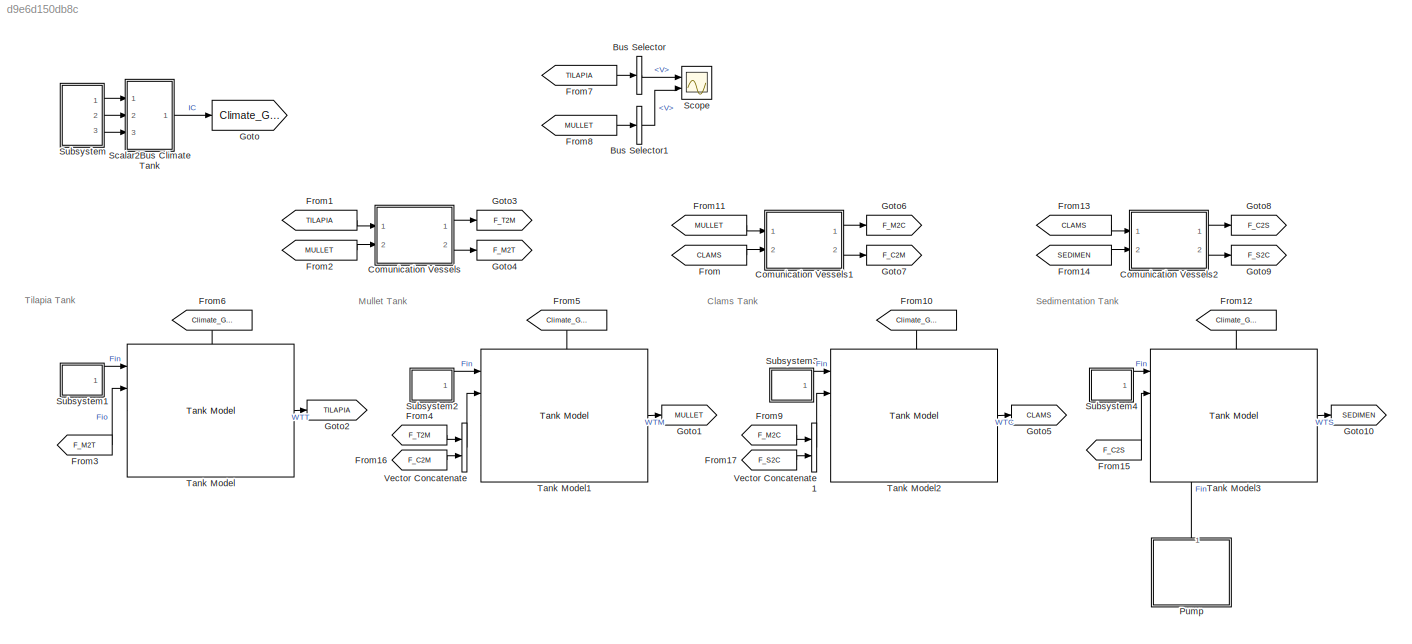
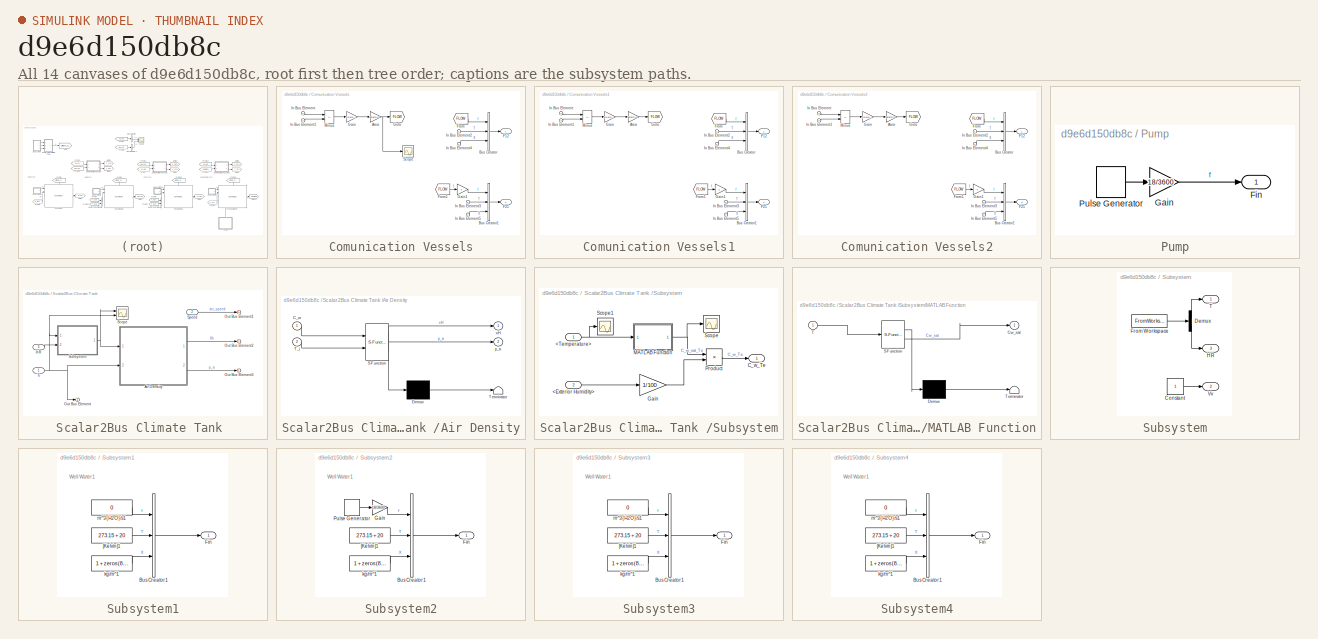
[diagram: thumbnail index - all 14 canvases of the model, root first then tree order]
MODEL slx_d9e6d150db8c
KIND model
CONFIG AbsTol = auto
CONFIG EnableMultiTasking = off
CONFIG FixedStep = auto
CONFIG MaxStep = auto
CONFIG MinStep = auto
CONFIG RelTol = 1e-3
CONFIG SampleTimeConstraint = Unconstrained
CONFIG SolverName = VariableStepAuto
CONFIG StartTime = 0.0
CONFIG StopTime = tspan(end)
BLOCK [BusSelector] Bus Selector
  OutputSignals = V
  Ports = [1, 1]
BLOCK [BusSelector] Bus Selector1
  OutputSignals = V
  Ports = [1, 1]
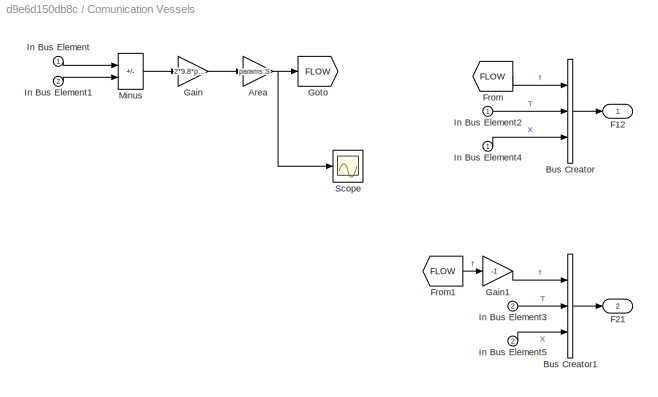
BLOCK [SubSystem] Comunication Vessels
  Ports = [2, 2]
  RequestExecContextInheritance = off
BLOCK [Gain] Comunication Vessels/Area
  Gain = params.S
BLOCK [BusCreator] Comunication Vessels/Bus Creator
  DisplayOption = bar
  InheritFromInputs = on
  Inputs = 3
  NonVirtualBus = on
  OutDataTypeStr = Bus: FLOW
  Ports = [3, 1]
BLOCK [BusCreator] Comunication Vessels/Bus Creator1
  DisplayOption = bar
  InheritFromInputs = on
  Inputs = 3
  NonVirtualBus = on
  OutDataTypeStr = Bus: FLOW
  Ports = [3, 1]
BLOCK [Outport] Comunication Vessels/F12
BLOCK [Outport] Comunication Vessels/F21
  Port = 2
BLOCK [From] Comunication Vessels/From
  GotoTag = FLOW
BLOCK [From] Comunication Vessels/From1
  GotoTag = FLOW
BLOCK [Gain] Comunication Vessels/Gain
  Gain = 2*9.8*params.S
BLOCK [Gain] Comunication Vessels/Gain1
  Gain = -1
BLOCK [Goto] Comunication Vessels/Goto
  GotoTag = FLOW
BLOCK [Inport] Comunication Vessels/In Bus Element
BLOCK [Inport] Comunication Vessels/In Bus Element1
  Port = 2
BLOCK [Inport] Comunication Vessels/In Bus Element2
BLOCK [Inport] Comunication Vessels/In Bus Element3
  Port = 2
BLOCK [Inport] Comunication Vessels/In Bus Element4
BLOCK [Inport] Comunication Vessels/In Bus Element5
  Port = 2
BLOCK [Sum] Comunication Vessels/Minus
  IconShape = rectangular
  Inputs = +-
  Ports = [2, 1]
BLOCK [Scope] Comunication Vessels/Scope
  Floating = off
  NumInputPorts = 1
  Ports = [1]
  ScopeSpecificationString = Simulink.scopes.TimeScopeBlockCfg('CurrentConfiguration', extmgr.ConfigurationSet(extmgr.Configuration('Core','General UI',true),extmgr.Configuration('Core','Source UI',true),extmgr.Configuration('Sources','WiredSimulink',true,'DataLoggingVariableName','ScopeData4'),extmgr.Configuration('Visuals','Time Domain',true,'SerializedDisplays',{struct('MinYLimReal','-0.00000000016','MaxYLimReal','0.000000...<+1411ch>
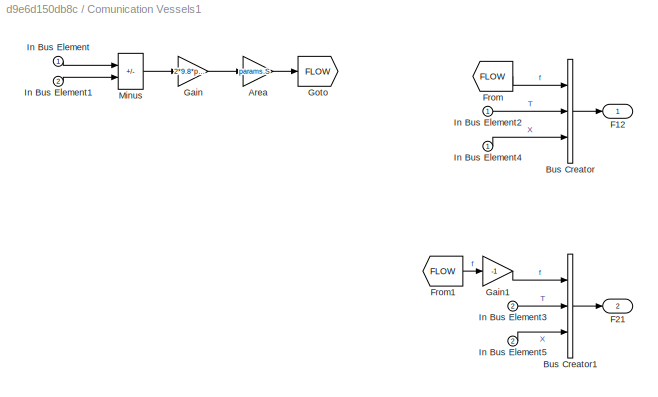
BLOCK [SubSystem] Comunication Vessels1
  Ports = [2, 2]
  RequestExecContextInheritance = off
BLOCK [Gain] Comunication Vessels1/Area
  Gain = params.S
BLOCK [BusCreator] Comunication Vessels1/Bus Creator
  DisplayOption = bar
  InheritFromInputs = on
  Inputs = 3
  NonVirtualBus = on
  OutDataTypeStr = Bus: FLOW
  Ports = [3, 1]
BLOCK [BusCreator] Comunication Vessels1/Bus Creator1
  DisplayOption = bar
  InheritFromInputs = on
  Inputs = 3
  NonVirtualBus = on
  OutDataTypeStr = Bus: FLOW
  Ports = [3, 1]
BLOCK [Outport] Comunication Vessels1/F12
BLOCK [Outport] Comunication Vessels1/F21
  Port = 2
BLOCK [From] Comunication Vessels1/From
  GotoTag = FLOW
BLOCK [From] Comunication Vessels1/From1
  GotoTag = FLOW
BLOCK [Gain] Comunication Vessels1/Gain
  Gain = 2*9.8*params.S
BLOCK [Gain] Comunication Vessels1/Gain1
  Gain = -1
BLOCK [Goto] Comunication Vessels1/Goto
  GotoTag = FLOW
BLOCK [Inport] Comunication Vessels1/In Bus Element
BLOCK [Inport] Comunication Vessels1/In Bus Element1
  Port = 2
BLOCK [Inport] Comunication Vessels1/In Bus Element2
BLOCK [Inport] Comunication Vessels1/In Bus Element3
  Port = 2
BLOCK [Inport] Comunication Vessels1/In Bus Element4
BLOCK [Inport] Comunication Vessels1/In Bus Element5
  Port = 2
BLOCK [Sum] Comunication Vessels1/Minus
  IconShape = rectangular
  Inputs = +-
  Ports = [2, 1]
BLOCK [SubSystem] Comunication Vessels2
  Ports = [2, 2]
  RequestExecContextInheritance = off
BLOCK [Gain] Comunication Vessels2/Area
  Gain = params.S
BLOCK [BusCreator] Comunication Vessels2/Bus Creator
  DisplayOption = bar
  InheritFromInputs = on
  Inputs = 3
  NonVirtualBus = on
  OutDataTypeStr = Bus: FLOW
  Ports = [3, 1]
BLOCK [BusCreator] Comunication Vessels2/Bus Creator1
  DisplayOption = bar
  InheritFromInputs = on
  Inputs = 3
  NonVirtualBus = on
  OutDataTypeStr = Bus: FLOW
  Ports = [3, 1]
BLOCK [Outport] Comunication Vessels2/F12
BLOCK [Outport] Comunication Vessels2/F21
  Port = 2
BLOCK [From] Comunication Vessels2/From
  GotoTag = FLOW
BLOCK [From] Comunication Vessels2/From1
  GotoTag = FLOW
BLOCK [Gain] Comunication Vessels2/Gain
  Gain = 2*9.8*params.S
BLOCK [Gain] Comunication Vessels2/Gain1
  Gain = -1
BLOCK [Goto] Comunication Vessels2/Goto
  GotoTag = FLOW
BLOCK [Inport] Comunication Vessels2/In Bus Element
BLOCK [Inport] Comunication Vessels2/In Bus Element1
  Port = 2
BLOCK [Inport] Comunication Vessels2/In Bus Element2
BLOCK [Inport] Comunication Vessels2/In Bus Element3
  Port = 2
BLOCK [Inport] Comunication Vessels2/In Bus Element4
BLOCK [Inport] Comunication Vessels2/In Bus Element5
  Port = 2
BLOCK [Sum] Comunication Vessels2/Minus
  IconShape = rectangular
  Inputs = +-
  Ports = [2, 1]
BLOCK [From] From
  GotoTag = CLAMS
BLOCK [From] From1
  GotoTag = TILAPIA
BLOCK [From] From10
  GotoTag = Climate_GH3
  NameLocation = left
BLOCK [From] From11
  GotoTag = MULLET
BLOCK [From] From12
  GotoTag = Climate_GH3
  NameLocation = left
BLOCK [From] From13
  GotoTag = CLAMS
BLOCK [From] From14
  GotoTag = SEDIMEN
BLOCK [From] From15
  GotoTag = F_C2S
BLOCK [From] From16
  GotoTag = F_C2M
BLOCK [From] From17
  GotoTag = F_S2C
BLOCK [From] From2
  GotoTag = MULLET
BLOCK [From] From3
  GotoTag = F_M2T
BLOCK [From] From4
  GotoTag = F_T2M
BLOCK [From] From5
  GotoTag = Climate_GH3
  NameLocation = left
BLOCK [From] From6
  GotoTag = Climate_GH3
  NameLocation = left
BLOCK [From] From7
  GotoTag = TILAPIA
BLOCK [From] From8
  GotoTag = MULLET
BLOCK [From] From9
  GotoTag = F_M2C
BLOCK [Goto] Goto
  GotoTag = Climate_GH3
BLOCK [Goto] Goto1
  GotoTag = MULLET
BLOCK [Goto] Goto10
  GotoTag = SEDIMEN
BLOCK [Goto] Goto2
  GotoTag = TILAPIA
BLOCK [Goto] Goto3
  GotoTag = F_T2M
BLOCK [Goto] Goto4
  GotoTag = F_M2T
BLOCK [Goto] Goto5
  GotoTag = CLAMS
BLOCK [Goto] Goto6
  GotoTag = F_M2C
BLOCK [Goto] Goto7
  GotoTag = F_C2M
BLOCK [Goto] Goto8
  GotoTag = F_C2S
BLOCK [Goto] Goto9
  GotoTag = F_S2C
BLOCK [SubSystem] Pump
  NameLocation = right
  Ports = [0, 1]
  RequestExecContextInheritance = off
BLOCK [Outport] Pump/Fin
BLOCK [Gain] Pump/Gain
  Gain = 18/3600
BLOCK [DiscretePulseGenerator] Pump/Pulse Generator
  Period = 1
  Ports = [0, 1]
  PulseType = Time based
  PulseWidth = 0.23/(24)
BLOCK [SubSystem] Scalar2Bus Climate Tank 
  Ports = [3, 1]
  RequestExecContextInheritance = off
BLOCK [SubSystem] Scalar2Bus Climate Tank /Air Density
  ErrorFcn = Stateflow.Translate.translate
  PermitHierarchicalResolution = ExplicitOnly
  Ports = [2, 2]
  RequestExecContextInheritance = off
  SFBlockType = MATLAB Function
  TreatAsAtomicUnit = on
BLOCK [Demux] Scalar2Bus Climate Tank /Air Density/ Demux 
  Outputs = 1
  Ports = [1, 1]
BLOCK [S-Function] Scalar2Bus Climate Tank /Air Density/ SFunction 
  EnableBusSupport = on
  FunctionName = sf_sfun
  PortCounts = [2 3]
  Ports = [2, 3]
  SFcnIsStateOwnerBlock = off
  SFunctionDeploymentMode = off
  Tag = Stateflow S-Function 4
BLOCK [Terminator] Scalar2Bus Climate Tank /Air Density/ Terminator 
BLOCK [Inport] Scalar2Bus Climate Tank /Air Density/C_w
BLOCK [Inport] Scalar2Bus Climate Tank /Air Density/T_i
  Port = 2
BLOCK [Outport] Scalar2Bus Climate Tank /Air Density/p_a
  Port = 2
BLOCK [Outport] Scalar2Bus Climate Tank /Air Density/xH
BLOCK [Inport] Scalar2Bus Climate Tank /HR
  Port = 3
BLOCK [Outport] Scalar2Bus Climate Tank /Out Bus Element
BLOCK [Outport] Scalar2Bus Climate Tank /Out Bus Element1
BLOCK [Outport] Scalar2Bus Climate Tank /Out Bus Element2
BLOCK [Outport] Scalar2Bus Climate Tank /Out Bus Element3
BLOCK [Scope] Scalar2Bus Climate Tank /Scope
  Floating = off
  NumInputPorts = 2
  Ports = [2]
  ScopeSpecificationString = Simulink.scopes.TimeScopeBlockCfg('CurrentConfiguration', extmgr.ConfigurationSet(extmgr.Configuration('Core','General UI',true),extmgr.Configuration('Core','Source UI',true),extmgr.Configuration('Sources','WiredSimulink',true,'DataLoggingVariableName','ScopeData1'),extmgr.Configuration('Visuals','Time Domain',true,'SerializedDisplays',{struct('MinYLimReal','0.00465','MaxYLimReal','0.02781','YLabe...<+2063ch>
BLOCK [Inport] Scalar2Bus Climate Tank /Speed
  Port = 2
BLOCK [SubSystem] Scalar2Bus Climate Tank /Subsystem
  Ports = [2, 1]
  RequestExecContextInheritance = off
BLOCK [Inport] Scalar2Bus Climate Tank /Subsystem/<Exterior Humidity>
  Port = 2
BLOCK [Inport] Scalar2Bus Climate Tank /Subsystem/<Temperature>
BLOCK [Outport] Scalar2Bus Climate Tank /Subsystem/C_w_Te
BLOCK [Gain] Scalar2Bus Climate Tank /Subsystem/Gain
  Gain = 1/100
BLOCK [SubSystem] Scalar2Bus Climate Tank /Subsystem/MATLAB Function
  ErrorFcn = Stateflow.Translate.translate
  PermitHierarchicalResolution = ExplicitOnly
  Ports = [1, 1]
  RequestExecContextInheritance = off
  SFBlockType = MATLAB Function
  TreatAsAtomicUnit = on
BLOCK [Demux] Scalar2Bus Climate Tank /Subsystem/MATLAB Function/ Demux 
  Outputs = 1
  Ports = [1, 1]
BLOCK [S-Function] Scalar2Bus Climate Tank /Subsystem/MATLAB Function/ SFunction 
  EnableBusSupport = on
  FunctionName = sf_sfun
  PortCounts = [1 2]
  Ports = [1, 2]
  SFcnIsStateOwnerBlock = off
  SFunctionDeploymentMode = off
  Tag = Stateflow S-Function 2
BLOCK [Terminator] Scalar2Bus Climate Tank /Subsystem/MATLAB Function/ Terminator 
BLOCK [Outport] Scalar2Bus Climate Tank /Subsystem/MATLAB Function/Cw_sat
BLOCK [Inport] Scalar2Bus Climate Tank /Subsystem/MATLAB Function/T
BLOCK [Product] Scalar2Bus Climate Tank /Subsystem/Product
  Ports = [2, 1]
BLOCK [Scope] Scalar2Bus Climate Tank /Subsystem/Scope
  Floating = off
  NumInputPorts = 1
  Ports = [1]
  ScopeSpecificationString = Simulink.scopes.TimeScopeBlockCfg('CurrentConfiguration', extmgr.ConfigurationSet(extmgr.Configuration('Core','General UI',true),extmgr.Configuration('Core','Source UI',true),extmgr.Configuration('Sources','WiredSimulink',true,'DataLoggingVariableName','ScopeData2'),extmgr.Configuration('Visuals','Time Domain',true,'SerializedDisplays',{struct('MinYLimReal','0.00527','MaxYLimReal','0.0587','YLabel...<+1363ch>
BLOCK [Scope] Scalar2Bus Climate Tank /Subsystem/Scope1
  Floating = off
  NumInputPorts = 1
  Ports = [1]
  ScopeSpecificationString = Simulink.scopes.TimeScopeBlockCfg('CurrentConfiguration', extmgr.ConfigurationSet(extmgr.Configuration('Core','General UI',true),extmgr.Configuration('Core','Source UI',true),extmgr.Configuration('Sources','WiredSimulink',true,'DataLoggingVariableName','ScopeData3'),extmgr.Configuration('Visuals','Time Domain',true,'SerializedDisplays',{struct('MinYLimReal','281.283','MaxYLimReal','317.41408','YLa...<+1378ch>
BLOCK [Inport] Scalar2Bus Climate Tank /Ti
BLOCK [Scope] Scope
  Floating = off
  NumInputPorts = 2
  Ports = [2]
  ScopeSpecificationString = Simulink.scopes.TimeScopeBlockCfg('CurrentConfiguration', extmgr.ConfigurationSet(extmgr.Configuration('Core','General UI',true),extmgr.Configuration('Core','Source UI',true),extmgr.Configuration('Sources','WiredSimulink',true),extmgr.Configuration('Visuals','Time Domain',true,'SerializedDisplays',{struct('MinYLimReal','24.84442','MaxYLimReal','25.49271','YLabelReal','','MinYLimMag','24.84442','Ma...<+1408ch>
BLOCK [SubSystem] Subsystem
  Ports = [0, 3]
  RequestExecContextInheritance = off
BLOCK [Constant] Subsystem/Constant
BLOCK [Demux] Subsystem/Demux
  Outputs = 2
  Ports = [1, 2]
BLOCK [FromWorkspace] Subsystem/From Workspace
  VariableName = climate
BLOCK [Outport] Subsystem/HR
  Port = 3
BLOCK [Outport] Subsystem/T
BLOCK [Outport] Subsystem/Vv
  Port = 2
BLOCK [SubSystem] Subsystem1
  Ports = [0, 1]
  RequestExecContextInheritance = off
BLOCK [BusCreator] Subsystem1/Bus Creator1
  DisplayOption = bar
  InheritFromInputs = on
  Inputs = 3
  NonVirtualBus = on
  OutDataTypeStr = Bus: FLOW
  Ports = [3, 1]
BLOCK [Outport] Subsystem1/Fin
BLOCK [Constant] Subsystem1/[Kelvin]1
  Value = 273.15 + 20
BLOCK [Constant] Subsystem1/kg//m^1
  Value = 1 + zeros(8,1)
BLOCK [Constant] Subsystem1/m^3{H2O}//s1
  Value = 0
BLOCK [SubSystem] Subsystem2
  Ports = [0, 1]
  RequestExecContextInheritance = off
BLOCK [BusCreator] Subsystem2/Bus Creator1
  DisplayOption = bar
  InheritFromInputs = on
  Inputs = 3
  NonVirtualBus = on
  OutDataTypeStr = Bus: FLOW
  Ports = [3, 1]
BLOCK [Outport] Subsystem2/Fin
BLOCK [Gain] Subsystem2/Gain
  Gain = 18/3600
BLOCK [DiscretePulseGenerator] Subsystem2/Pulse Generator
  Period = 1
  Ports = [0, 1]
  PulseType = Time based
  PulseWidth = 0.23/(24)
BLOCK [Constant] Subsystem2/[Kelvin]1
  Value = 273.15 + 20
BLOCK [Constant] Subsystem2/kg//m^1
  Value = 1 + zeros(8,1)
BLOCK [SubSystem] Subsystem3
  Ports = [0, 1]
  RequestExecContextInheritance = off
BLOCK [BusCreator] Subsystem3/Bus Creator1
  DisplayOption = bar
  InheritFromInputs = on
  Inputs = 3
  NonVirtualBus = on
  OutDataTypeStr = Bus: FLOW
  Ports = [3, 1]
BLOCK [Outport] Subsystem3/Fin
BLOCK [Constant] Subsystem3/[Kelvin]1
  Value = 273.15 + 20
BLOCK [Constant] Subsystem3/kg//m^1
  Value = 1 + zeros(8,1)
BLOCK [Constant] Subsystem3/m^3{H2O}//s1
  Value = 0
BLOCK [SubSystem] Subsystem4
  Ports = [0, 1]
  RequestExecContextInheritance = off
BLOCK [BusCreator] Subsystem4/Bus Creator1
  DisplayOption = bar
  InheritFromInputs = on
  Inputs = 3
  NonVirtualBus = on
  OutDataTypeStr = Bus: FLOW
  Ports = [3, 1]
BLOCK [Outport] Subsystem4/Fin
BLOCK [Constant] Subsystem4/[Kelvin]1
  Value = 273.15 + 20
BLOCK [Constant] Subsystem4/kg//m^1
  Value = 1 + zeros(8,1)
BLOCK [Constant] Subsystem4/m^3{H2O}//s1
  Value = 0
BLOCK [Reference] Tank Model  REF=HORTISIM/Aquaculture/Models/Tank Model
  Ports = [5, 1]
  SourceBlock = HORTISIM/Aquaculture/Models/Tank Model
  SourceProductName = Horti Simulator
BLOCK [Reference] Tank Model1  REF=HORTISIM/Aquaculture/Models/Tank Model
  Ports = [5, 1]
  SourceBlock = HORTISIM/Aquaculture/Models/Tank Model
  SourceProductName = Horti Simulator
BLOCK [Reference] Tank Model2  REF=HORTISIM/Aquaculture/Models/Tank Model
  Ports = [5, 1]
  SourceBlock = HORTISIM/Aquaculture/Models/Tank Model
  SourceProductName = Horti Simulator
BLOCK [Reference] Tank Model3  REF=HORTISIM/Aquaculture/Models/Tank Model
  Ports = [5, 1]
  SourceBlock = HORTISIM/Aquaculture/Models/Tank Model
  SourceProductName = Horti Simulator
BLOCK [Concatenate] Vector Concatenate
  Ports = [2, 1]
BLOCK [Concatenate] Vector Concatenate1
  Ports = [2, 1]
ANNOTATION (root): Clams Tank
ANNOTATION (root): Mullet Tank
ANNOTATION (root): Sedimentation Tank
ANNOTATION (root): Tilapia Tank
ANNOTATION Subsystem1: Well Water1
ANNOTATION Subsystem2: Well Water1
ANNOTATION Subsystem3: Well Water1
ANNOTATION Subsystem4: Well Water1
LINE Bus Selector1:1 -> Scope:2
LINE Bus Selector:1 -> Scope:1
NET Comunication Vessels/Area:1 -> Comunication Vessels/Goto:1, Comunication Vessels/Scope:1
LINE Comunication Vessels/Bus Creator1:1 -> Comunication Vessels/F21:1
LINE Comunication Vessels/Bus Creator:1 -> Comunication Vessels/F12:1
LINE Comunication Vessels/From1:1 -> Comunication Vessels/Gain1:1
LINE Comunication Vessels/From:1 -> Comunication Vessels/Bus Creator:1
LINE Comunication Vessels/Gain1:1 -> Comunication Vessels/Bus Creator1:1
LINE Comunication Vessels/Gain:1 -> Comunication Vessels/Area:1
LINE Comunication Vessels/In Bus Element1:1 -> Comunication Vessels/Minus:2
LINE Comunication Vessels/In Bus Element2:1 -> Comunication Vessels/Bus Creator:2
LINE Comunication Vessels/In Bus Element3:1 -> Comunication Vessels/Bus Creator1:2
LINE Comunication Vessels/In Bus Element4:1 -> Comunication Vessels/Bus Creator:3
LINE Comunication Vessels/In Bus Element5:1 -> Comunication Vessels/Bus Creator1:3
LINE Comunication Vessels/In Bus Element:1 -> Comunication Vessels/Minus:1
LINE Comunication Vessels/Minus:1 -> Comunication Vessels/Gain:1
LINE Comunication Vessels1/Area:1 -> Comunication Vessels1/Goto:1
LINE Comunication Vessels1/Bus Creator1:1 -> Comunication Vessels1/F21:1
LINE Comunication Vessels1/Bus Creator:1 -> Comunication Vessels1/F12:1
LINE Comunication Vessels1/From1:1 -> Comunication Vessels1/Gain1:1
LINE Comunication Vessels1/From:1 -> Comunication Vessels1/Bus Creator:1
LINE Comunication Vessels1/Gain1:1 -> Comunication Vessels1/Bus Creator1:1
LINE Comunication Vessels1/Gain:1 -> Comunication Vessels1/Area:1
LINE Comunication Vessels1/In Bus Element1:1 -> Comunication Vessels1/Minus:2
LINE Comunication Vessels1/In Bus Element2:1 -> Comunication Vessels1/Bus Creator:2
LINE Comunication Vessels1/In Bus Element3:1 -> Comunication Vessels1/Bus Creator1:2
LINE Comunication Vessels1/In Bus Element4:1 -> Comunication Vessels1/Bus Creator:3
LINE Comunication Vessels1/In Bus Element5:1 -> Comunication Vessels1/Bus Creator1:3
LINE Comunication Vessels1/In Bus Element:1 -> Comunication Vessels1/Minus:1
LINE Comunication Vessels1/Minus:1 -> Comunication Vessels1/Gain:1
LINE Comunication Vessels1:1 -> Goto6:1
LINE Comunication Vessels1:2 -> Goto7:1
LINE Comunication Vessels2/Area:1 -> Comunication Vessels2/Goto:1
LINE Comunication Vessels2/Bus Creator1:1 -> Comunication Vessels2/F21:1
LINE Comunication Vessels2/Bus Creator:1 -> Comunication Vessels2/F12:1
LINE Comunication Vessels2/From1:1 -> Comunication Vessels2/Gain1:1
LINE Comunication Vessels2/From:1 -> Comunication Vessels2/Bus Creator:1
LINE Comunication Vessels2/Gain1:1 -> Comunication Vessels2/Bus Creator1:1
LINE Comunication Vessels2/Gain:1 -> Comunication Vessels2/Area:1
LINE Comunication Vessels2/In Bus Element1:1 -> Comunication Vessels2/Minus:2
LINE Comunication Vessels2/In Bus Element2:1 -> Comunication Vessels2/Bus Creator:2
LINE Comunication Vessels2/In Bus Element3:1 -> Comunication Vessels2/Bus Creator1:2
LINE Comunication Vessels2/In Bus Element4:1 -> Comunication Vessels2/Bus Creator:3
LINE Comunication Vessels2/In Bus Element5:1 -> Comunication Vessels2/Bus Creator1:3
LINE Comunication Vessels2/In Bus Element:1 -> Comunication Vessels2/Minus:1
LINE Comunication Vessels2/Minus:1 -> Comunication Vessels2/Gain:1
LINE Comunication Vessels2:1 -> Goto8:1
LINE Comunication Vessels2:2 -> Goto9:1
LINE Comunication Vessels:1 -> Goto3:1
LINE Comunication Vessels:2 -> Goto4:1
LINE From10:1 -> Tank Model2:3
LINE From11:1 -> Comunication Vessels1:1
LINE From12:1 -> Tank Model3:3
LINE From13:1 -> Comunication Vessels2:1
LINE From14:1 -> Comunication Vessels2:2
LINE From15:1 -> Tank Model3:2
LINE From16:1 -> Vector Concatenate:2
LINE From17:1 -> Vector Concatenate1:2
LINE From1:1 -> Comunication Vessels:1
LINE From2:1 -> Comunication Vessels:2
LINE From3:1 -> Tank Model:2
LINE From4:1 -> Vector Concatenate:1
LINE From5:1 -> Tank Model1:3
LINE From6:1 -> Tank Model:3
LINE From7:1 -> Bus Selector:1
LINE From8:1 -> Bus Selector1:1
LINE From9:1 -> Vector Concatenate1:1
LINE From:1 -> Comunication Vessels1:2
LINE Pump/Gain:1 -> Pump/Fin:1
LINE Pump/Pulse Generator:1 -> Pump/Gain:1
LINE Pump:1 -> Tank Model3:4
LINE Scalar2Bus Climate Tank /Air Density:1 -> Scalar2Bus Climate Tank /Out Bus Element2:1
LINE Scalar2Bus Climate Tank /Air Density:2 -> Scalar2Bus Climate Tank /Out Bus Element3:1
LINE Scalar2Bus Climate Tank /HR:1 -> Scalar2Bus Climate Tank /Subsystem:2
LINE Scalar2Bus Climate Tank /Speed:1 -> Scalar2Bus Climate Tank /Out Bus Element1:1
LINE Scalar2Bus Climate Tank /Subsystem/<Exterior Humidity>:1 -> Scalar2Bus Climate Tank /Subsystem/Gain:1
NET Scalar2Bus Climate Tank /Subsystem/<Temperature>:1 -> Scalar2Bus Climate Tank /Subsystem/MATLAB Function:1, Scalar2Bus Climate Tank /Subsystem/Scope1:1
LINE Scalar2Bus Climate Tank /Subsystem/Gain:1 -> Scalar2Bus Climate Tank /Subsystem/Product:2
NET Scalar2Bus Climate Tank /Subsystem/MATLAB Function:1 -> Scalar2Bus Climate Tank /Subsystem/Product:1, Scalar2Bus Climate Tank /Subsystem/Scope:1
LINE Scalar2Bus Climate Tank /Subsystem/Product:1 -> Scalar2Bus Climate Tank /Subsystem/C_w_Te:1
NET Scalar2Bus Climate Tank /Subsystem:1 -> Scalar2Bus Climate Tank /Air Density:1, Scalar2Bus Climate Tank /Scope:1
NET Scalar2Bus Climate Tank /Ti:1 -> Scalar2Bus Climate Tank /Air Density:2, Scalar2Bus Climate Tank /Out Bus Element:1, Scalar2Bus Climate Tank /Scope:2, Scalar2Bus Climate Tank /Subsystem:1
LINE Scalar2Bus Climate Tank :1 -> Goto:1
LINE Subsystem/Constant:1 -> Subsystem/Vv:1
LINE Subsystem/Demux:1 -> Subsystem/T:1
LINE Subsystem/Demux:2 -> Subsystem/HR:1
LINE Subsystem/From Workspace:1 -> Subsystem/Demux:1
LINE Subsystem1/Bus Creator1:1 -> Subsystem1/Fin:1
LINE Subsystem1/[Kelvin]1:1 -> Subsystem1/Bus Creator1:2
LINE Subsystem1/kg//m^1:1 -> Subsystem1/Bus Creator1:3
LINE Subsystem1/m^3{H2O}//s1:1 -> Subsystem1/Bus Creator1:1
LINE Subsystem1:1 -> Tank Model:1
LINE Subsystem2/Bus Creator1:1 -> Subsystem2/Fin:1
LINE Subsystem2/Gain:1 -> Subsystem2/Bus Creator1:1
LINE Subsystem2/Pulse Generator:1 -> Subsystem2/Gain:1
LINE Subsystem2/[Kelvin]1:1 -> Subsystem2/Bus Creator1:2
LINE Subsystem2/kg//m^1:1 -> Subsystem2/Bus Creator1:3
LINE Subsystem2:1 -> Tank Model1:1
LINE Subsystem3/Bus Creator1:1 -> Subsystem3/Fin:1
LINE Subsystem3/[Kelvin]1:1 -> Subsystem3/Bus Creator1:2
LINE Subsystem3/kg//m^1:1 -> Subsystem3/Bus Creator1:3
LINE Subsystem3/m^3{H2O}//s1:1 -> Subsystem3/Bus Creator1:1
LINE Subsystem3:1 -> Tank Model2:1
LINE Subsystem4/Bus Creator1:1 -> Subsystem4/Fin:1
LINE Subsystem4/[Kelvin]1:1 -> Subsystem4/Bus Creator1:2
LINE Subsystem4/kg//m^1:1 -> Subsystem4/Bus Creator1:3
LINE Subsystem4/m^3{H2O}//s1:1 -> Subsystem4/Bus Creator1:1
LINE Subsystem4:1 -> Tank Model3:1
LINE Subsystem:1 -> Scalar2Bus Climate Tank :1
LINE Subsystem:2 -> Scalar2Bus Climate Tank :2
LINE Subsystem:3 -> Scalar2Bus Climate Tank :3
LINE Tank Model1:1 -> Goto1:1
LINE Tank Model2:1 -> Goto5:1
LINE Tank Model3:1 -> Goto10:1
LINE Tank Model:1 -> Goto2:1
LINE Vector Concatenate1:1 -> Tank Model2:2
LINE Vector Concatenate:1 -> Tank Model1:2
note: NET lines group one-source signal fan-out (src -> all destinations, sorted); 1:1 wires keep LINE
CHART Scalar2Bus 
Climate Tank /Subsystem/MATLAB Function states=1 transitions=1
  STATE_LABEL 'eML_blk_kernel()'
  STATE_LABEL 'SCRIPT:\nfunction Cw_sat = fcn(T)\n\npws = exp(77.3450 + 0.0057*T - 7235 / T)/T^8.2;\nCw_sat = 0.0022*pws/T;'
CHART Scalar2Bus 
Climate Tank /Air Density states=1 transitions=1
  STATE_LABEL 'eML_blk_kernel()'
  STATE_LABEL 'SCRIPT:\nfunction [xH,p_a] =   Air(C_w,T_i)\n\n% CONSTANTS\n% =========  \natm = 101300; % standard atmospheric pressure [Pa]\nR   = 8.3140; % gas constant [J/mol/K]\nM_w = 0.0180; % molar mass of water [kg/mol]\n\n%%\np_w = C_w*R.*T_i/M_w; % Partial pressure of water [Pa]\np_a = (atm - p_w);\n\nxH = 0.62198* p_w /(p_a - p_w);\n%%'
CHART  states=0 transitions=0
CHART  states=0 transitions=0
